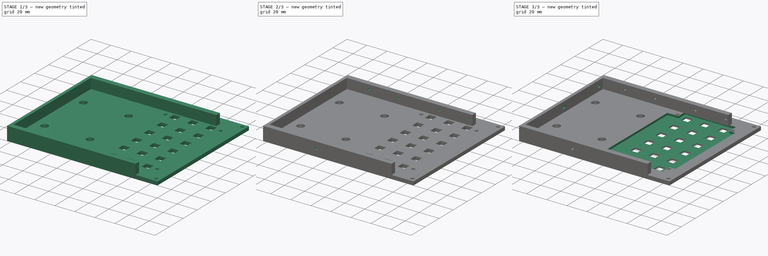
[diagram: build sequence overview — one tinted view per stage of 3, left to right]
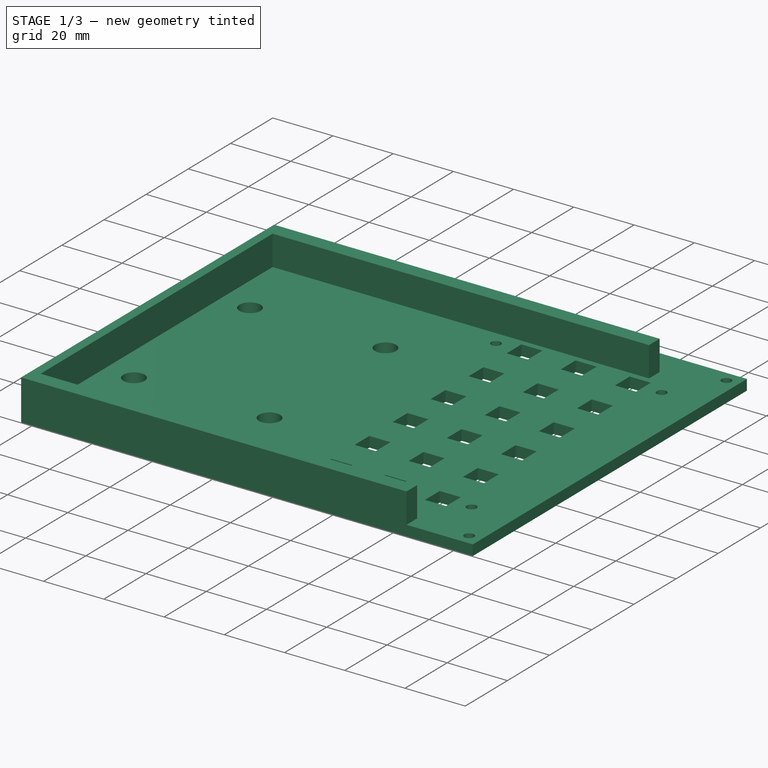
[diagram: stage 1 of 3 — iso view after this stage's code; geometry added in this stage tinted green]
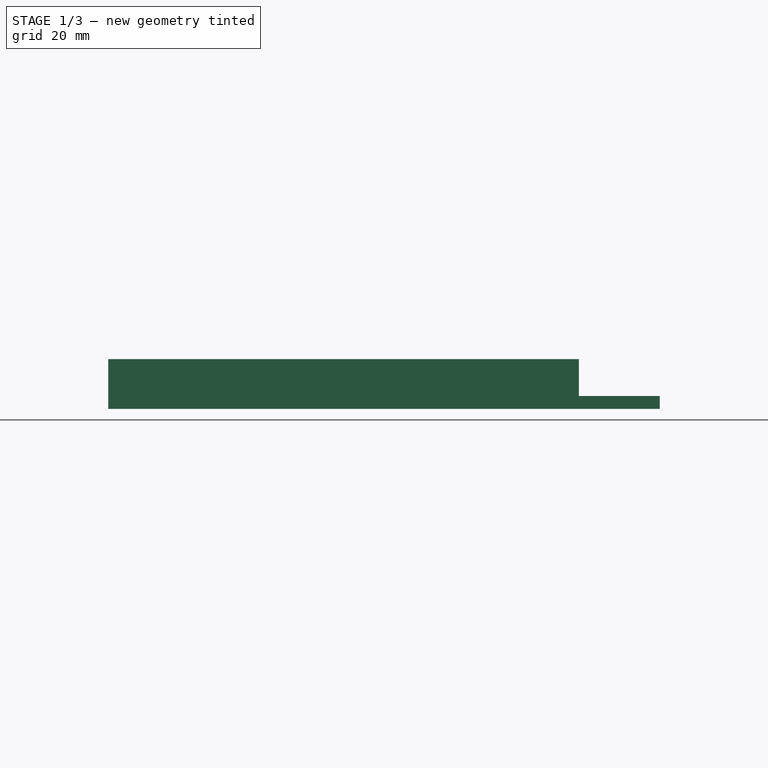
[diagram: stage 1 of 3 — front view after this stage's code; geometry added in this stage tinted green]
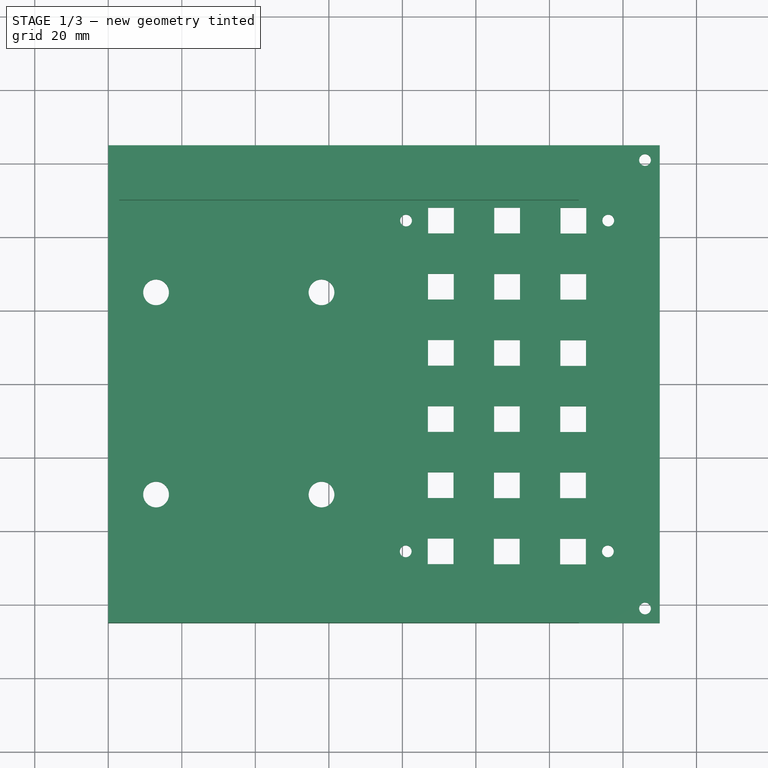
[diagram: stage 1 of 3 — top view after this stage's code; geometry added in this stage tinted green]
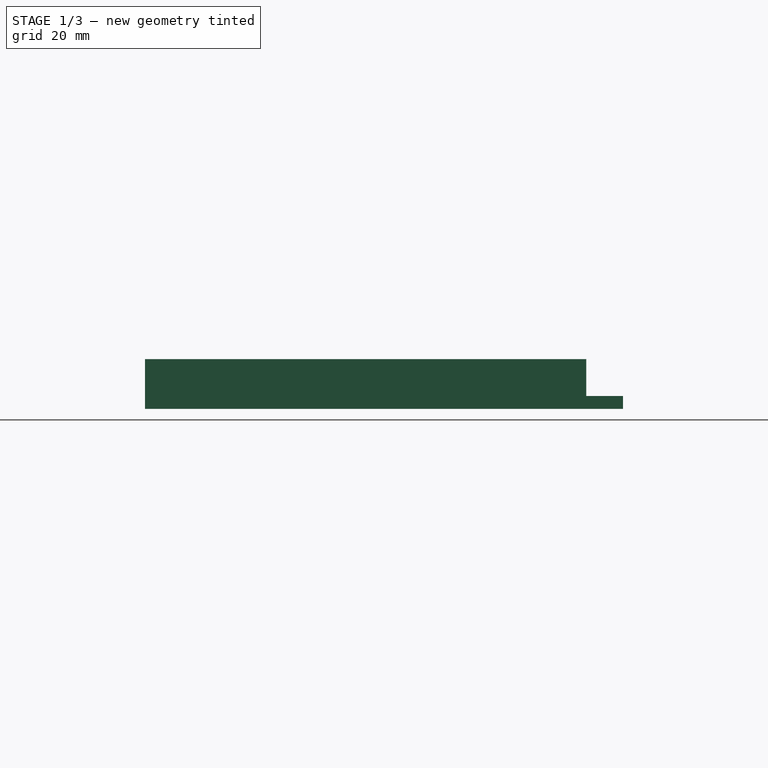
[diagram: stage 1 of 3 — right view after this stage's code; geometry added in this stage tinted green]
FCSTD DOCUMENT  (FreeCAD 0.19R24267 +99 (Git))
Label: T41 Front Right Panel V010
License: All rights reserved
LicenseURL: http://en.wikipedia.org/wiki/All_rights_reserved
objects: Sketcher::SketchObject×6, PartDesign::Pocket×4, PartDesign::Pad×2, PartDesign::Body×1
note: 19 computed .brp shape members not serialized (recipe doc carries the construction recipe); baked Part::Feature solids carry a one-line shape summary decoded from their .brp

FEATURE [Sketcher::SketchObject] Sketch013  label="Sketch"
  FullyConstrained = true
  MapMode = 5
  Support = -> [XY_Plane001]
  sketch-geometry (103):
    g0: LineSegment StartX=0 StartY=65 StartZ=0 EndX=150 EndY=65 EndZ=0
    g1: LineSegment StartX=150 StartY=65 StartZ=0 EndX=150 EndY=-65 EndZ=0
    g2: LineSegment StartX=150 StartY=-65 StartZ=0 EndX=0 EndY=-65 EndZ=0
    g3: LineSegment StartX=0 StartY=-65 StartZ=0 EndX=0 EndY=65 EndZ=0
    g4: Circle CenterX=13 CenterY=25 CenterZ=0 NormalX=0 NormalY=0 NormalZ=1 AngleXU=0 Radius=3.5
    g5: Circle CenterX=58 CenterY=25 CenterZ=0 NormalX=0 NormalY=0 NormalZ=1 AngleXU=0 Radius=3.5
    g6: Circle CenterX=13 CenterY=-30 CenterZ=0 NormalX=0 NormalY=0 NormalZ=1 AngleXU=0 Radius=3.5
    g7: Circle CenterX=58 CenterY=-30 CenterZ=0 NormalX=0 NormalY=0 NormalZ=1 AngleXU=0 Radius=3.5
    g8: LineSegment StartX=87 StartY=48.0396 StartZ=0 EndX=94 EndY=48.0396 EndZ=0
    g9: LineSegment StartX=94 StartY=48.0396 StartZ=0 EndX=94 EndY=41.0396 EndZ=0
    g10: LineSegment StartX=94 StartY=41.0396 StartZ=0 EndX=87 EndY=41.0396 EndZ=0
    g11: LineSegment StartX=87 StartY=41.0396 StartZ=0 EndX=87 EndY=48.0396 EndZ=0
    g12: LineSegment StartX=105 StartY=48.0198 StartZ=0 EndX=112 EndY=48.0198 EndZ=0
    g13: LineSegment StartX=112 StartY=48.0198 StartZ=0 EndX=112 EndY=41.0198 EndZ=0
    g14: LineSegment StartX=112 StartY=41.0198 StartZ=0 EndX=105 EndY=41.0198 EndZ=0
    g15: LineSegment StartX=105 StartY=41.0198 StartZ=0 EndX=105 EndY=48.0198 EndZ=0
    g16: LineSegment StartX=87 StartY=48.0396 StartZ=0 EndX=105 EndY=48.0198 EndZ=0
    g17: LineSegment StartX=123 StartY=48 StartZ=0 EndX=130 EndY=48 EndZ=0
    g18: LineSegment StartX=130 StartY=48 StartZ=0 EndX=130 EndY=41 EndZ=0
    g19: LineSegment StartX=130 StartY=41 StartZ=0 EndX=123 EndY=41 EndZ=0
    g20: LineSegment StartX=123 StartY=41 StartZ=0 EndX=123 EndY=48 EndZ=0
    g21: LineSegment StartX=105 StartY=48.0198 StartZ=0 EndX=123 EndY=48 EndZ=0
    g22: LineSegment StartX=86.9802 StartY=30.0396 StartZ=0 EndX=93.9802 EndY=30.0396 EndZ=0
    g23: LineSegment StartX=93.9802 StartY=30.0396 StartZ=0 EndX=93.9802 EndY=23.0396 EndZ=0
    g24: LineSegment StartX=93.9802 StartY=23.0396 StartZ=0 EndX=86.9802 EndY=23.0396 EndZ=0
    g25: LineSegment StartX=86.9802 StartY=23.0396 StartZ=0 EndX=86.9802 EndY=30.0396 EndZ=0
    g26: LineSegment StartX=87 StartY=48.0396 StartZ=0 EndX=86.9802 EndY=30.0396 EndZ=0
    g27: LineSegment StartX=104.98 StartY=30.0198 StartZ=0 EndX=111.98 EndY=30.0198 EndZ=0
    g28: LineSegment StartX=111.98 StartY=30.0198 StartZ=0 EndX=111.98 EndY=23.0198 EndZ=0
    g29: LineSegment StartX=111.98 StartY=23.0198 StartZ=0 EndX=104.98 EndY=23.0198 EndZ=0
    g30: LineSegment StartX=104.98 StartY=23.0198 StartZ=0 EndX=104.98 EndY=30.0198 EndZ=0
    g31: LineSegment StartX=86.9802 StartY=30.0396 StartZ=0 EndX=104.98 EndY=30.0198 EndZ=0
    g32: LineSegment StartX=122.98 StartY=30 StartZ=0 EndX=129.98 EndY=30 EndZ=0
    g33: LineSegment StartX=129.98 StartY=30 StartZ=0 EndX=129.98 EndY=23 EndZ=0
    g34: LineSegment StartX=129.98 StartY=23 StartZ=0 EndX=122.98 EndY=23 EndZ=0
    g35: LineSegment StartX=122.98 StartY=23 StartZ=0 EndX=122.98 EndY=30 EndZ=0
    g36: LineSegment StartX=104.98 StartY=30.0198 StartZ=0 EndX=122.98 EndY=30 EndZ=0
    g37: LineSegment StartX=86.9604 StartY=12.0396 StartZ=0 EndX=93.9604 EndY=12.0396 EndZ=0
    g38: LineSegment StartX=93.9604 StartY=12.0396 StartZ=0 EndX=93.9604 EndY=5.0396 EndZ=0
    g39: LineSegment StartX=93.9604 StartY=5.0396 StartZ=0 EndX=86.9604 EndY=5.0396 EndZ=0
    g40: LineSegment StartX=86.9604 StartY=5.0396 StartZ=0 EndX=86.9604 EndY=12.0396 EndZ=0
    g41: LineSegment StartX=86.9802 StartY=30.0396 StartZ=0 EndX=86.9604 EndY=12.0396 EndZ=0
    g42: LineSegment StartX=104.96 StartY=12.0198 StartZ=0 EndX=111.96 EndY=12.0198 EndZ=0
    g43: LineSegment StartX=111.96 StartY=12.0198 StartZ=0 EndX=111.96 EndY=5.01981 EndZ=0
    g44: LineSegment StartX=111.96 StartY=5.01981 StartZ=0 EndX=104.96 EndY=5.01981 EndZ=0
    g45: LineSegment StartX=104.96 StartY=5.01981 StartZ=0 EndX=104.96 EndY=12.0198 EndZ=0
    g46: LineSegment StartX=86.9604 StartY=12.0396 StartZ=0 EndX=104.96 EndY=12.0198 EndZ=0
    g47: LineSegment StartX=122.96 StartY=12 StartZ=0 EndX=129.96 EndY=12 EndZ=0
    g48: LineSegment StartX=129.96 StartY=12 StartZ=0 EndX=129.96 EndY=5.00002 EndZ=0
    g49: LineSegment StartX=129.96 StartY=5.00002 StartZ=0 EndX=122.96 EndY=5.00002 EndZ=0
    g50: LineSegment StartX=122.96 StartY=5.00002 StartZ=0 EndX=122.96 EndY=12 EndZ=0
    g51: LineSegment StartX=104.96 StartY=12.0198 StartZ=0 EndX=122.96 EndY=12 EndZ=0
    g52: LineSegment StartX=86.9407 StartY=-5.96039 StartZ=0 EndX=93.9407 EndY=-5.96039 EndZ=0
    g53: LineSegment StartX=93.9407 StartY=-5.96039 StartZ=0 EndX=93.9407 EndY=-12.9604 EndZ=0
    g54: LineSegment StartX=93.9407 StartY=-12.9604 StartZ=0 EndX=86.9407 EndY=-12.9604 EndZ=0
    g55: LineSegment StartX=86.9407 StartY=-12.9604 StartZ=0 EndX=86.9407 EndY=-5.96039 EndZ=0
    g56: LineSegment StartX=86.9604 StartY=12.0396 StartZ=0 EndX=86.9407 EndY=-5.96039 EndZ=0
    g57: LineSegment StartX=104.941 StartY=-5.98018 StartZ=0 EndX=111.941 EndY=-5.98018 EndZ=0
    g58: LineSegment StartX=111.941 StartY=-5.98018 StartZ=0 EndX=111.941 EndY=-12.9802 EndZ=0
    g59: LineSegment StartX=111.941 StartY=-12.9802 StartZ=0 EndX=104.941 EndY=-12.9802 EndZ=0
    g60: LineSegment StartX=104.941 StartY=-12.9802 StartZ=0 EndX=104.941 EndY=-5.98018 EndZ=0
    g61: LineSegment StartX=86.9407 StartY=-5.96039 StartZ=0 EndX=104.941 EndY=-5.98018 EndZ=0
    g62: LineSegment StartX=122.941 StartY=-5.99997 StartZ=0 EndX=129.941 EndY=-5.99997 EndZ=0
    g63: LineSegment StartX=129.941 StartY=-5.99997 StartZ=0 EndX=129.941 EndY=-13 EndZ=0
    g64: LineSegment StartX=129.941 StartY=-13 StartZ=0 EndX=122.941 EndY=-13 EndZ=0
    g65: LineSegment StartX=122.941 StartY=-13 StartZ=0 EndX=122.941 EndY=-5.99997 EndZ=0
    g66: LineSegment StartX=104.941 StartY=-5.98018 StartZ=0 EndX=122.941 EndY=-5.99997 EndZ=0
    g67: LineSegment StartX=86.9209 StartY=-23.9604 StartZ=0 EndX=93.9209 EndY=-23.9604 EndZ=0
    g68: LineSegment StartX=93.9209 StartY=-23.9604 StartZ=0 EndX=93.9209 EndY=-30.9604 EndZ=0
    g69: LineSegment StartX=93.9209 StartY=-30.9604 StartZ=0 EndX=86.9209 EndY=-30.9604 EndZ=0
    g70: LineSegment StartX=86.9209 StartY=-30.9604 StartZ=0 EndX=86.9209 EndY=-23.9604 EndZ=0
    g71: LineSegment StartX=86.9407 StartY=-5.96039 StartZ=0 EndX=86.9209 EndY=-23.9604 EndZ=0
    g72: LineSegment StartX=104.921 StartY=-23.9802 StartZ=0 EndX=111.921 EndY=-23.9802 EndZ=0
    g73: LineSegment StartX=111.921 StartY=-23.9802 StartZ=0 EndX=111.921 EndY=-30.9802 EndZ=0
    g74: LineSegment StartX=111.921 StartY=-30.9802 StartZ=0 EndX=104.921 EndY=-30.9802 EndZ=0
    g75: LineSegment StartX=104.921 StartY=-30.9802 StartZ=0 EndX=104.921 EndY=-23.9802 EndZ=0
    g76: LineSegment StartX=86.9209 StartY=-23.9604 StartZ=0 EndX=104.921 EndY=-23.9802 EndZ=0
    g77: LineSegment StartX=122.921 StartY=-24 StartZ=0 EndX=129.921 EndY=-24 EndZ=0
    g78: LineSegment StartX=129.921 StartY=-24 StartZ=0 EndX=129.921 EndY=-31 EndZ=0
    g79: LineSegment StartX=129.921 StartY=-31 StartZ=0 EndX=122.921 EndY=-31 EndZ=0
    g80: LineSegment StartX=122.921 StartY=-31 StartZ=0 EndX=122.921 EndY=-24 EndZ=0
    g81: LineSegment StartX=104.921 StartY=-23.9802 StartZ=0 EndX=122.921 EndY=-24 EndZ=0
    g82: LineSegment StartX=86.9011 StartY=-41.9604 StartZ=0 EndX=93.9011 EndY=-41.9604 EndZ=0
    g83: LineSegment StartX=93.9011 StartY=-41.9604 StartZ=0 EndX=93.9011 EndY=-48.9604 EndZ=0
    g84: LineSegment StartX=93.9011 StartY=-48.9604 StartZ=0 EndX=86.9011 EndY=-48.9604 EndZ=0
    g85: LineSegment StartX=86.9011 StartY=-48.9604 StartZ=0 EndX=86.9011 EndY=-41.9604 EndZ=0
    g86: LineSegment StartX=86.9209 StartY=-23.9604 StartZ=0 EndX=86.9011 EndY=-41.9604 EndZ=0
    g87: LineSegment StartX=104.901 StartY=-41.9802 StartZ=0 EndX=111.901 EndY=-41.9802 EndZ=0
    g88: LineSegment StartX=111.901 StartY=-41.9802 StartZ=0 EndX=111.901 EndY=-48.9802 EndZ=0
    g89: LineSegment StartX=111.901 StartY=-48.9802 StartZ=0 EndX=104.901 EndY=-48.9802 EndZ=0
    g90: LineSegment StartX=104.901 StartY=-48.9802 StartZ=0 EndX=104.901 EndY=-41.9802 EndZ=0
    g91: LineSegment StartX=86.9011 StartY=-41.9604 StartZ=0 EndX=104.901 EndY=-41.9802 EndZ=0
    g92: LineSegment StartX=122.901 StartY=-41.9999 StartZ=0 EndX=129.901 EndY=-41.9999 EndZ=0
    g93: LineSegment StartX=129.901 StartY=-41.9999 StartZ=0 EndX=129.901 EndY=-48.9999 EndZ=0
    g94: LineSegment StartX=129.901 StartY=-48.9999 StartZ=0 EndX=122.901 EndY=-48.9999 EndZ=0
    g95: LineSegment StartX=122.901 StartY=-48.9999 StartZ=0 EndX=122.901 EndY=-41.9999 EndZ=0
    g96: LineSegment StartX=104.901 StartY=-41.9802 StartZ=0 EndX=122.901 EndY=-41.9999 EndZ=0
    g97: Circle CenterX=146 CenterY=61 CenterZ=0 NormalX=0 NormalY=0 NormalZ=1 AngleXU=0 Radius=1.6
    g98: Circle CenterX=146 CenterY=-61 CenterZ=0 NormalX=0 NormalY=0 NormalZ=1 AngleXU=0 Radius=1.6
    g99: Circle CenterX=81 CenterY=44.5396 CenterZ=0 NormalX=0 NormalY=0 NormalZ=1 AngleXU=0 Radius=1.6
    g100: Circle CenterX=136 CenterY=44.5396 CenterZ=0 NormalX=0 NormalY=0 NormalZ=1 AngleXU=0 Radius=1.6
    g101: Circle CenterX=80.9011 CenterY=-45.4604 CenterZ=0 NormalX=0 NormalY=0 NormalZ=1 AngleXU=0 Radius=1.6
    g102: Circle CenterX=135.901 CenterY=-45.4604 CenterZ=0 NormalX=0 NormalY=0 NormalZ=1 AngleXU=0 Radius=1.6
  constraints (291):
    c: Coincident(g0,g1)
    c: Coincident(g1,g2)
    c: Coincident(g2,g3)
    c: Coincident(g3,g0)
    c: Horizontal(g2)
    c: Vertical(g1)
    c: DistanceX(g0,g0) = 150
    c: DistanceY(g3,g3) = 130
    c: Symmetric(g0,g2,g-1)
    c: Equal(g4,g5)
    c: Equal(g4,g6)
    c: Equal(g4,g7)
    c: Radius(g4) = 3.5  'Encoders'
    c: Coincident(g8,g9)
    c: Coincident(g9,g10)
    c: Coincident(g10,g11)
    c: Coincident(g11,g8)
    c: Horizontal(g8)
    c: Horizontal(g10)
    c: Vertical(g9)
    c: Vertical(g11)
    c: DistanceX(g8,g8) = 7
    c: DistanceY(g11,g11) = 7
    c: Coincident(g12,g13)
    c: Coincident(g13,g14)
    c: Coincident(g14,g15)
    c: Coincident(g15,g12)
    c: Horizontal(g12)
    c: Horizontal(g14)
    c: Vertical(g13)
    c: Vertical(g15)
    c: DistanceX(g12,g12) = 7
    c: DistanceY(g15,g15) = 7
    c: Coincident(g8,g16)
    c: Coincident(g12,g16)
    c: Distance(g16) = 18
    c: Angle(g16) = -0.00109927
    c: Coincident(g17,g18)
    c: Coincident(g18,g19)
    c: Coincident(g19,g20)
    c: Coincident(g20,g17)
    c: Horizontal(g17)
    c: Horizontal(g19)
    c: Vertical(g18)
    c: Vertical(g20)
    c: DistanceX(g17,g17) = 7
    c: DistanceY(g20,g20) = 7
    c: Coincident(g12,g21)
    c: Coincident(g17,g21)
    c: Equal(g16,g21)
    c: Parallel(g21,g16)
    c: Coincident(g22,g23)
    c: Coincident(g23,g24)
    c: Coincident(g24,g25)
    c: Coincident(g25,g22)
    c: Horizontal(g22)
    c: Horizontal(g24)
    c: Vertical(g23)
    c: Vertical(g25)
    c: DistanceX(g22,g22) = 7
    c: DistanceY(g25,g25) = 7
    c: Coincident(g8,g26)
    c: Coincident(g22,g26)
    c: Equal(g26,g16)
    c: Perpendicular(g26,g16)
    c: Coincident(g27,g28)
    c: Coincident(g28,g29)
    c: Coincident(g29,g30)
    c: Coincident(g30,g27)
    c: Horizontal(g27)
    c: Horizontal(g29)
    c: Vertical(g28)
    c: Vertical(g30)
    c: DistanceX(g27,g27) = 7
    c: DistanceY(g30,g30) = 7
    c: Coincident(g22,g31)
    c: Coincident(g27,g31)
    c: Equal(g16,g31)
    c: Parallel(g31,g16)
    c: Coincident(g32,g33)
    c: Coincident(g33,g34)
    c: Coincident(g34,g35)
    c: Coincident(g35,g32)
    c: Horizontal(g32)
    c: Horizontal(g34)
    c: Vertical(g33)
    c: Vertical(g35)
    c: DistanceX(g32,g32) = 7
    c: DistanceY(g35,g35) = 7
    c: Coincident(g27,g36)
    c: Coincident(g32,g36)
    c: Equal(g16,g36)
    c: Parallel(g36,g16)
    c: Coincident(g37,g38)
    c: Coincident(g38,g39)
    c: Coincident(g39,g40)
    c: Coincident(g40,g37)
    c: Horizontal(g37)
    c: Horizontal(g39)
    c: Vertical(g38)
    c: Vertical(g40)
    c: DistanceX(g37,g37) = 7
    c: DistanceY(g40,g40) = 7
    c: Coincident(g22,g41)
    c: Coincident(g37,g41)
    c: Equal(g26,g41)
    c: Perpendicular(g41,g16)
    c: Coincident(g42,g43)
    c: Coincident(g43,g44)
    c: Coincident(g44,g45)
    c: Coincident(g45,g42)
    c: Horizontal(g42)
    c: Horizontal(g44)
    c: Vertical(g43)
    c: Vertical(g45)
    c: DistanceX(g42,g42) = 7
    c: DistanceY(g45,g45) = 7
    c: Coincident(g37,g46)
    c: Coincident(g42,g46)
    c: Equal(g16,g46)
    c: Parallel(g46,g16)
    c: Coincident(g47,g48)
    c: Coincident(g48,g49)
    c: Coincident(g49,g50)
    c: Coincident(g50,g47)
    c: Horizontal(g47)
    c: Horizontal(g49)
    c: Vertical(g48)
    c: Vertical(g50)
    c: DistanceX(g47,g47) = 7
    c: DistanceY(g50,g50) = 7
    c: Coincident(g42,g51)
    c: Coincident(g47,g51)
    c: Equal(g16,g51)
    c: Parallel(g51,g16)
    c: Coincident(g52,g53)
    c: Coincident(g53,g54)
    c: Coincident(g54,g55)
    c: Coincident(g55,g52)
    c: Horizontal(g52)
    c: Horizontal(g54)
    c: Vertical(g53)
    c: Vertical(g55)
    c: DistanceX(g52,g52) = 7
    c: DistanceY(g55,g55) = 7
    c: Coincident(g37,g56)
    c: Coincident(g52,g56)
    c: Equal(g26,g56)
    c: Perpendicular(g56,g16)
    c: Coincident(g57,g58)
    c: Coincident(g58,g59)
    c: Coincident(g59,g60)
    c: Coincident(g60,g57)
    c: Horizontal(g57)
    c: Horizontal(g59)
    c: Vertical(g58)
    c: Vertical(g60)
    c: DistanceX(g57,g57) = 7
    c: DistanceY(g60,g60) = 7
    c: Coincident(g52,g61)
    c: Coincident(g57,g61)
    c: Equal(g16,g61)
    c: Parallel(g61,g16)
    c: Coincident(g62,g63)
    c: Coincident(g63,g64)
    c: Coincident(g64,g65)
    c: Coincident(g65,g62)
    c: Horizontal(g62)
    c: Horizontal(g64)
    c: Vertical(g63)
    c: Vertical(g65)
    c: DistanceX(g62,g62) = 7
    c: DistanceY(g65,g65) = 7
    c: Coincident(g57,g66)
    c: Coincident(g62,g66)
    c: Equal(g16,g66)
    c: Parallel(g66,g16)
    c: Coincident(g67,g68)
    c: Coincident(g68,g69)
    c: Coincident(g69,g70)
    c: Coincident(g70,g67)
    c: Horizontal(g67)
    c: Horizontal(g69)
    c: Vertical(g68)
    c: Vertical(g70)
    c: DistanceX(g67,g67) = 7
    c: DistanceY(g70,g70) = 7
    c: Coincident(g52,g71)
    c: Coincident(g67,g71)
    c: Equal(g26,g71)
    c: Perpendicular(g71,g16)
    c: Coincident(g72,g73)
    c: Coincident(g73,g74)
    c: Coincident(g74,g75)
    c: Coincident(g75,g72)
    c: Horizontal(g72)
    c: Horizontal(g74)
    c: Vertical(g73)
    c: Vertical(g75)
    c: DistanceX(g72,g72) = 7
    c: DistanceY(g75,g75) = 7
    c: Coincident(g67,g76)
    c: Coincident(g72,g76)
    c: Equal(g16,g76)
    c: Parallel(g76,g16)
    c: Coincident(g77,g78)
    c: Coincident(g78,g79)
    c: Coincident(g79,g80)
    c: Coincident(g80,g77)
    c: Horizontal(g77)
    c: Horizontal(g79)
    c: Vertical(g78)
    c: Vertical(g80)
    c: DistanceX(g77,g77) = 7
    c: DistanceY(g80,g80) = 7
    c: Coincident(g72,g81)
    c: Coincident(g77,g81)
    c: Equal(g16,g81)
    c: Parallel(g81,g16)
    c: Coincident(g82,g83)
    c: Coincident(g83,g84)
    c: Coincident(g84,g85)
    c: Coincident(g85,g82)
    c: Horizontal(g82)
    c: Horizontal(g84)
    c: Vertical(g83)
    c: Vertical(g85)
    c: DistanceX(g82,g82) = 7
    c: DistanceY(g85,g85) = 7
    c: Coincident(g67,g86)
    c: Coincident(g82,g86)
    c: Equal(g26,g86)
    c: Perpendicular(g86,g16)
    c: Coincident(g87,g88)
    c: Coincident(g88,g89)
    c: Coincident(g89,g90)
    c: Coincident(g90,g87)
    c: Horizontal(g87)
    c: Horizontal(g89)
    c: Vertical(g88)
    c: Vertical(g90)
    c: DistanceX(g87,g87) = 7
    c: DistanceY(g90,g90) = 7
    c: Coincident(g82,g91)
    c: Coincident(g87,g91)
    c: Equal(g16,g91)
    c: Parallel(g91,g16)
    c: Coincident(g92,g93)
    c: Coincident(g93,g94)
    c: Coincident(g94,g95)
    c: Coincident(g95,g92)
    c: Horizontal(g92)
    c: Horizontal(g94)
    c: Vertical(g93)
    c: Vertical(g95)
    c: DistanceX(g92,g92) = 7
    c: DistanceY(g95,g95) = 7
    c: Coincident(g87,g96)
    c: Coincident(g92,g96)
    c: Equal(g16,g96)
    c: Parallel(g96,g16)
    c: DistanceY(g17,g0) = 17
    c: DistanceX(g17,g0) = 20
    c: DistanceX(g6,g7) = 45
    c: Horizontal(g6,g7)
    c: Vertical(g6,g4)
    c: Vertical(g7,g5)
    c: DistanceY(g6,g4) = 55
    c: DistanceY(g7,g5) = 55
    c: DistanceY(g1,g7) = 35
    c: DistanceX(g7,g1) = 92
    c: Radius(g97) = 1.6
    c: DistanceX(g97,g0) = 4
    c: DistanceY(g97,g0) = 4
    c: Radius(g98) = 1.6
    c: DistanceX(g98,g1) = 4
    c: DistanceY(g1,g98) = 4
    c: Radius(g99) = 1.6
    c: DistanceX(g99,g8) = 6
    c: Radius(g100) = 1.6
    c: DistanceX(g17,g100) = 6
    c: Radius(g101) = 1.6
    c: DistanceX(g101,g84) = 6
    c: Radius(g102) = 1.6
    c: DistanceX(g93,g102) = 6
    c: DistanceX(g0,g-1) = 0
    c: Equal(g0,g2)
    c: DistanceY(g101,g84) = -3.5
    c: Horizontal(g101,g102)
    c: DistanceY(g99,g8) = 3.5
    c: Horizontal(g99,g100)
FEATURE [PartDesign::Pad] Pad004  label="Front"
  Direction = (1,1,1)
  Length = 3.5
  Length2 = 100
  Profile = -> Sketch013
  Type = 0
FEATURE [Sketcher::SketchObject] Sketch001
  AttachmentOffset = pos=(0,0,3.5) rot=(0,0,1;0rad)
  FullyConstrained = true
  MapMode = 5
  Placement = pos=(0,0,3.5) rot=(0,0,1;0rad)
  Support = -> [XY_Plane001]
  sketch-geometry (10):
    g0: LineSegment StartX=0 StartY=55 StartZ=0 EndX=3 EndY=55 EndZ=0
    g1: LineSegment StartX=3 StartY=50 StartZ=0 EndX=3 EndY=-60 EndZ=0
    g2: LineSegment StartX=3 StartY=-65 StartZ=0 EndX=0 EndY=-65 EndZ=0
    g3: LineSegment StartX=0 StartY=-65 StartZ=0 EndX=0 EndY=55 EndZ=0
    g4: LineSegment StartX=3 StartY=55 StartZ=0 EndX=128 EndY=55 EndZ=0
    g5: LineSegment StartX=128 StartY=55 StartZ=0 EndX=128 EndY=50 EndZ=0
    g6: LineSegment StartX=128 StartY=50 StartZ=0 EndX=3 EndY=50 EndZ=0
    g7: LineSegment StartX=3 StartY=-65 StartZ=0 EndX=128 EndY=-65 EndZ=0
    g8: LineSegment StartX=128 StartY=-65 StartZ=0 EndX=128 EndY=-60 EndZ=0
    g9: LineSegment StartX=128 StartY=-60 StartZ=0 EndX=3 EndY=-60 EndZ=0
  constraints (32):
    c: Coincident(g2,g3)
    c: Coincident(g3,g0)
    c: Horizontal(g0)
    c: Horizontal(g2)
    c: Vertical(g1)
    c: Vertical(g3)
    c: PointOnObject(g0,g-2)
    c: DistanceY(g2,g0) = 120
    c: DistanceX(g2,g2) = 3
    c: DistanceY(g-1,g0) = 55
    c: Coincident(g4,g5)
    c: Coincident(g5,g6)
    c: Horizontal(g4)
    c: Horizontal(g6)
    c: Vertical(g5)
    c: Coincident(g4,g0)
    c: DistanceY(g5,g5) = 5
    c: DistanceX(g6,g6) = 125
    c: Coincident(g7,g8)
    c: Coincident(g8,g9)
    c: Horizontal(g7)
    c: Horizontal(g9)
    c: Vertical(g8)
    c: Coincident(g7,g2)
    c: DistanceY(g8,g8) = 5
    c: DistanceX(g9,g9) = 125
    c: PointOnObject(g1,g6)
    c: PointOnObject(g1,g9)
    c: DistanceX(g4,g4) = 125
    c: DistanceX(g7,g7) = 125
    c: DistanceX(g0,g0) = 3
    c: DistanceX(g2,g1) = 3
FEATURE [Sketcher::SketchObject] Sketch014  label="Sketch002"
  FullyConstrained = true
  MapMode = 5
  Placement = pos=(0,0,0) rot=(0.57735,0.57735,0.57735;2.0944rad)
  Support = -> [YZ_Plane001]
  sketch-geometry (3):
    g0: Circle CenterX=45 CenterY=8 CenterZ=0 NormalX=0 NormalY=0 NormalZ=1 AngleXU=0 Radius=1.75
    g1: Circle CenterX=-5 CenterY=8 CenterZ=0 NormalX=0 NormalY=0 NormalZ=1 AngleXU=0 Radius=1.75
    g2: Circle CenterX=-55 CenterY=8 CenterZ=0 NormalX=0 NormalY=0 NormalZ=1 AngleXU=0 Radius=1.75
  constraints (9):
    c: Equal(g0,g1)
    c: Diameter(g0) = 3.5
    c: DistanceX(g2,g-1) = 55
    c: DistanceX(g-1,g0) = 45
    c: DistanceY(g-1,g0) = 8
    c: DistanceY(g-1,g1) = 8
    c: DistanceY(g-1,g2) = 8
    c: Diameter(g2) = 3.5
    c: DistanceX(g1,g-1) = 5
FEATURE [Sketcher::SketchObject] Sketch015  label="Sketch003"
  AttachmentOffset = pos=(0,0,65) rot=(0,0,1;0rad)
  FullyConstrained = true
  MapMode = 5
  Placement = pos=(0,-65,-1.44e-14) rot=(1,0,0;1.5708rad)
  Support = -> [XZ_Plane001]
  sketch-geometry (1):
    g0: Circle CenterX=53 CenterY=7 CenterZ=0 NormalX=0 NormalY=0 NormalZ=1 AngleXU=0 Radius=1.15
  constraints (3):
    c: DistanceX(g-1,g0) = 53
    c: DistanceY(g-1,g0) = 7
    c: Diameter(g0) = 2.3
FEATURE [Sketcher::SketchObject] Sketch004
  AttachmentOffset = pos=(0,0,-55) rot=(0,0,1;0rad)
  FullyConstrained = true
  MapMode = 5
  Placement = pos=(0,55,1.22e-14) rot=(1,0,0;1.5708rad)
  Support = -> [XZ_Plane001]
  sketch-geometry (4):
    g0: Circle CenterX=25 CenterY=9 CenterZ=0 NormalX=0 NormalY=0 NormalZ=1 AngleXU=0 Radius=1
    g1: Circle CenterX=95 CenterY=9 CenterZ=0 NormalX=0 NormalY=0 NormalZ=1 AngleXU=0 Radius=1
    g2: Circle CenterX=55 CenterY=9 CenterZ=0 NormalX=0 NormalY=0 NormalZ=1 AngleXU=0 Radius=1
    g3: Circle CenterX=125 CenterY=9 CenterZ=0 NormalX=0 NormalY=0 NormalZ=1 AngleXU=0 Radius=1
  constraints (12):
    c: DistanceX(g-1,g0) = 25
    c: DistanceY(g-1,g0) = 9
    c: Horizontal(g0,g1)
    c: Equal(g1,g0)
    c: Diameter(g1) = 2
    c: DistanceX(g-1,g1) = 95
    c: DistanceX(g-1,g2) = 55
    c: DistanceX(g-1,g3) = 125
    c: DistanceY(g-1,g2) = 9
    c: DistanceY(g-1,g3) = 9
    c: Equal(g2,g3)
    c: Diameter(g2) = 2
FEATURE [Sketcher::SketchObject] Sketch  label="Sketch005"
  AttachmentOffset = pos=(0,0,3.5) rot=(0,0,1;0rad)
  FullyConstrained = true
  MapMode = 5
  Placement = pos=(0,0,3.5) rot=(0,0,1;0rad)
  Support = -> [XY_Plane001]
  sketch-geometry (12):
    g0: LineSegment StartX=83.55 StartY=52 StartZ=0 EndX=134.15 EndY=52 EndZ=0
    g1: LineSegment StartX=140 StartY=42.5 StartZ=0 EndX=140 EndY=-42.5 EndZ=0
    g2: LineSegment StartX=134.15 StartY=-53 StartZ=0 EndX=83.55 EndY=-53 EndZ=0
    g3: LineSegment StartX=72.55 StartY=-42.5 StartZ=0 EndX=72.55 EndY=42.5 EndZ=0
    g4: LineSegment StartX=83.55 StartY=-42.5 StartZ=0 EndX=83.55 EndY=-53 EndZ=0
    g5: LineSegment StartX=83.55 StartY=-42.5 StartZ=0 EndX=72.55 EndY=-42.5 EndZ=0
    g6: LineSegment StartX=134.15 StartY=-42.5 StartZ=0 EndX=134.15 EndY=-53 EndZ=0
    g7: LineSegment StartX=134.15 StartY=-42.5 StartZ=0 EndX=140 EndY=-42.5 EndZ=0
    g8: LineSegment StartX=83.55 StartY=42.5 StartZ=0 EndX=72.55 EndY=42.5 EndZ=0
    g9: LineSegment StartX=83.55 StartY=42.5 StartZ=0 EndX=83.55 EndY=52 EndZ=0
    g10: LineSegment StartX=134.15 StartY=42.5 StartZ=0 EndX=134.15 EndY=52 EndZ=0
    g11: LineSegment StartX=134.15 StartY=42.5 StartZ=0 EndX=140 EndY=42.5 EndZ=0
  constraints (36):
    c: Horizontal(g0)
    c: Horizontal(g2)
    c: Vertical(g1)
    c: Vertical(g3)
    c: Vertical(g4)
    c: Horizontal(g5)
    c: Horizontal(g7)
    c: Vertical(g9)
    c: Vertical(g10)
    c: Horizontal(g11)
    c: Coincident(g0,g9)
    c: Coincident(g3,g8)
    c: Coincident(g0,g10)
    c: Coincident(g1,g11)
    c: Coincident(g3,g5)
    c: Coincident(g2,g4)
    c: Coincident(g1,g7)
    c: Coincident(g2,g6)
    c: DistanceX(g-1,g1) = 140
    c: DistanceY(g-1,g0) = 52
    c: DistanceY(g2,g-1) = 53
    c: Perpendicular(g8,g3)
    c: Horizontal(g4,g6)
    c: DistanceY(g-1,g3) = 42.5
    c: Coincident(g9,g8)
    c: DistanceX(g8,g10) = 50.6
    c: Coincident(g10,g11)
    c: Horizontal(g8,g10)
    c: DistanceY(g3,g-1) = 42.5
    c: DistanceX(g8,g8) = 11
    c: Vertical(g8,g5)
    c: Coincident(g4,g5)
    c: DistanceX(g2,g2) = 50.6
    c: Coincident(g7,g6)
    c: Perpendicular(g2,g6)
    c: DistanceX(g-1,g3) = 72.55
FEATURE [PartDesign::Pad] Pad  label="Flange"
  BaseFeature = -> Pad004
  Direction = (1,1,1)
  Length = 10
  Length2 = 100
  Profile = -> Sketch001
  Type = 0
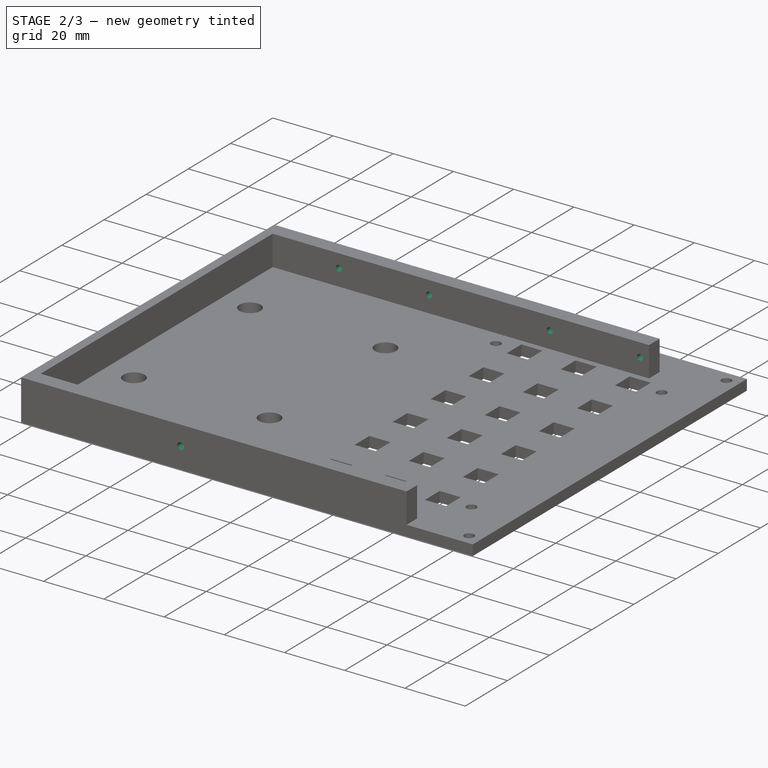
[diagram: stage 2 of 3 — iso view after this stage's code; geometry added in this stage tinted green]
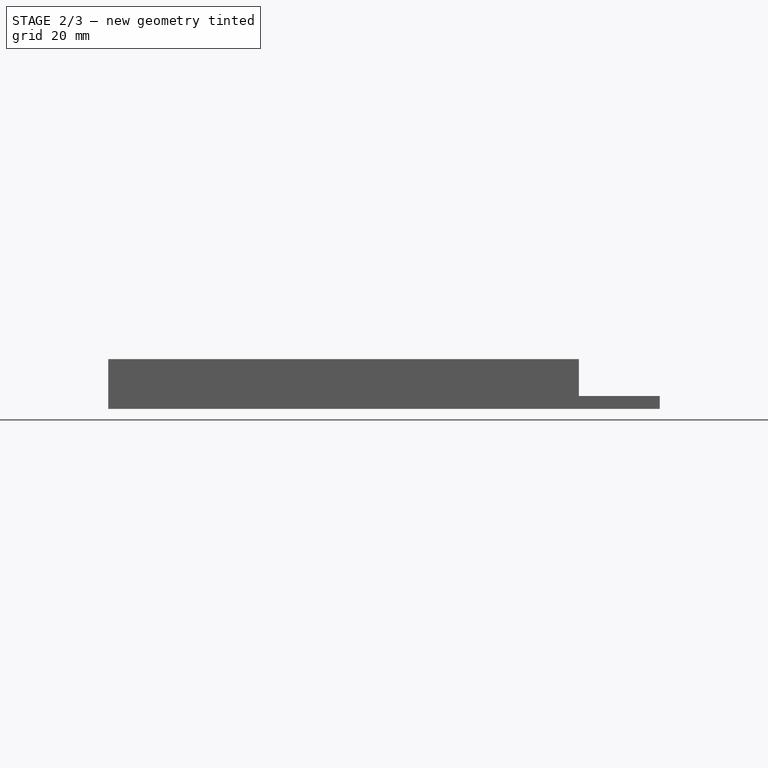
[diagram: stage 2 of 3 — front view after this stage's code; geometry added in this stage tinted green]
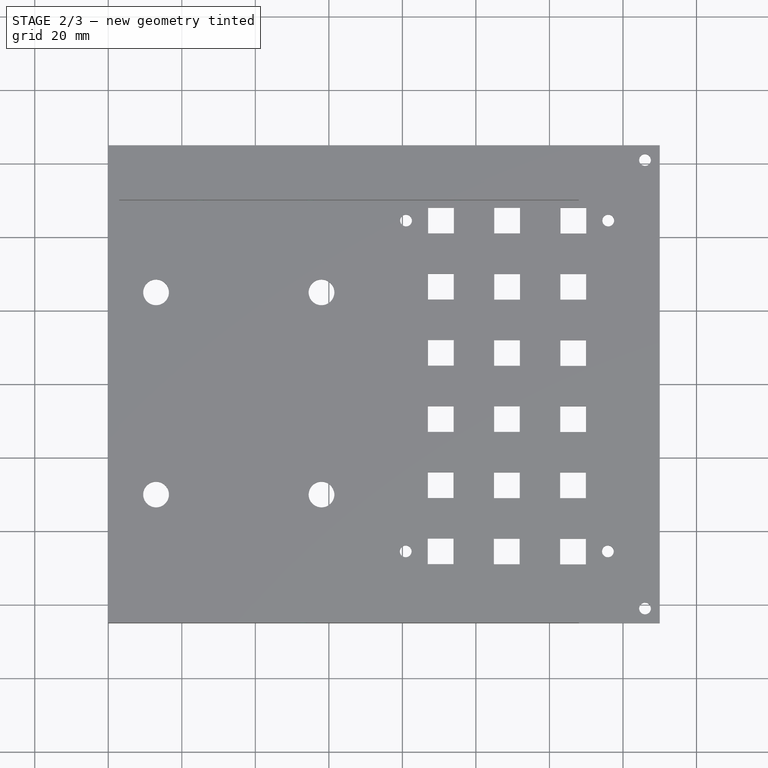
[diagram: stage 2 of 3 — top view after this stage's code; geometry added in this stage tinted green]
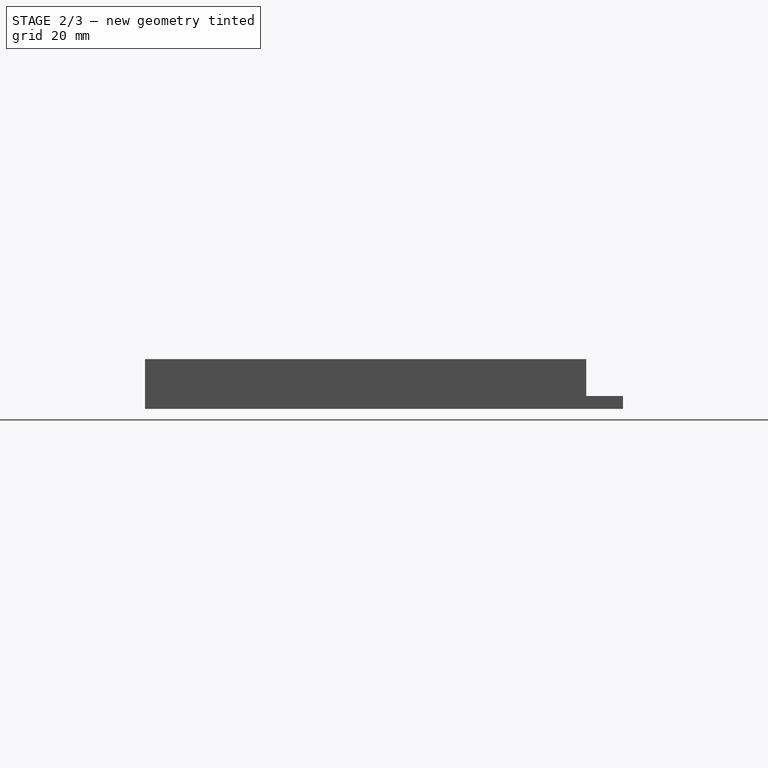
[diagram: stage 2 of 3 — right view after this stage's code; geometry added in this stage tinted green]
FEATURE [PartDesign::Pocket] Pocket005  label="2mm top Mtg Hole"
  BaseFeature = -> Pad
  Length = 5
  Length2 = 100
  Profile = -> Sketch015
  Type = 0
FEATURE [PartDesign::Pocket] Pocket006  label="Base Mtg Holes001"
  BaseFeature = -> Pocket005
  Length = 10
  Length2 = 100
  Midplane = true
  Profile = -> Sketch004
  Type = 0
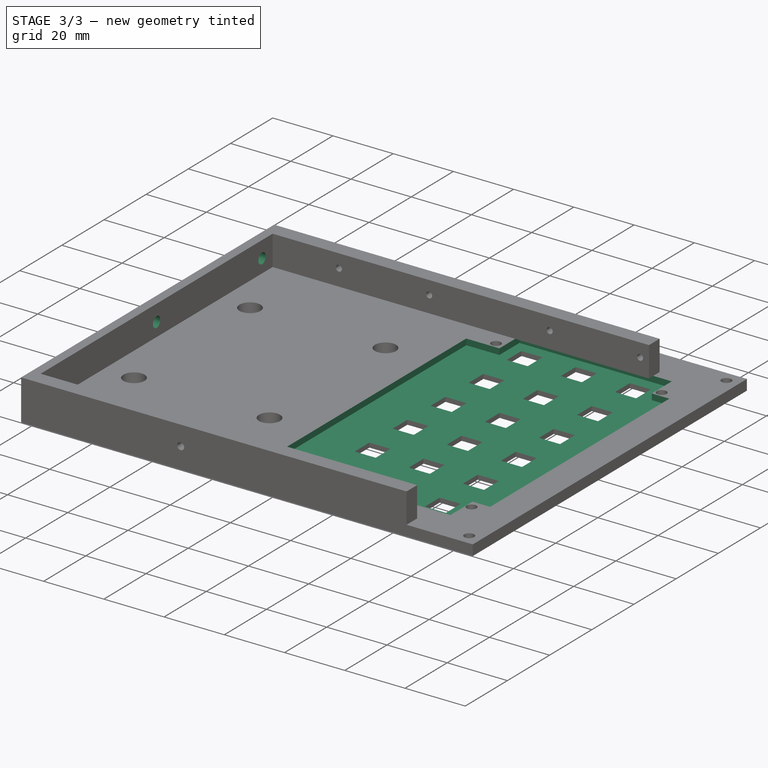
[diagram: stage 3 of 3 — iso view after this stage's code; geometry added in this stage tinted green]
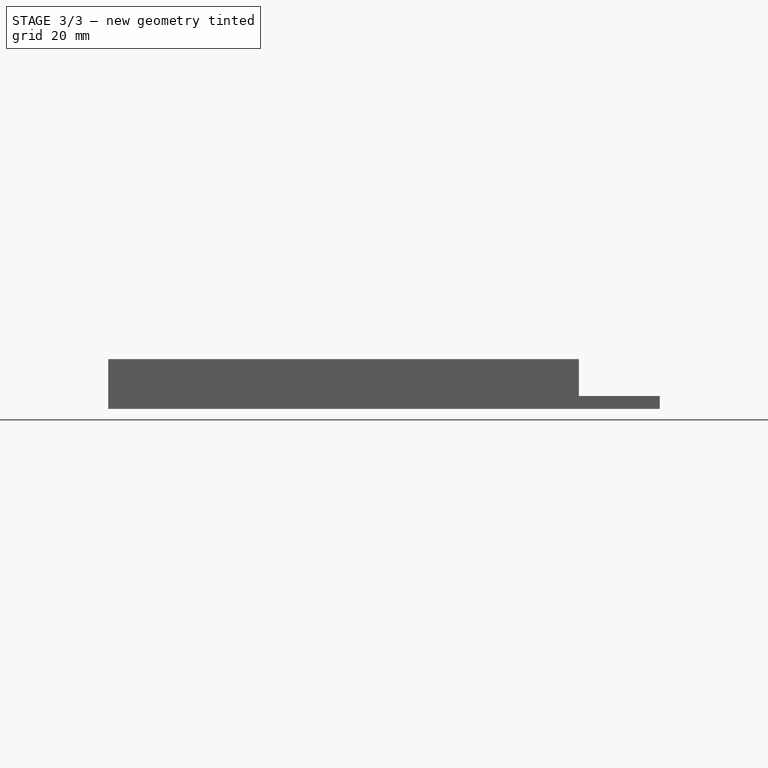
[diagram: stage 3 of 3 — front view after this stage's code; geometry added in this stage tinted green]
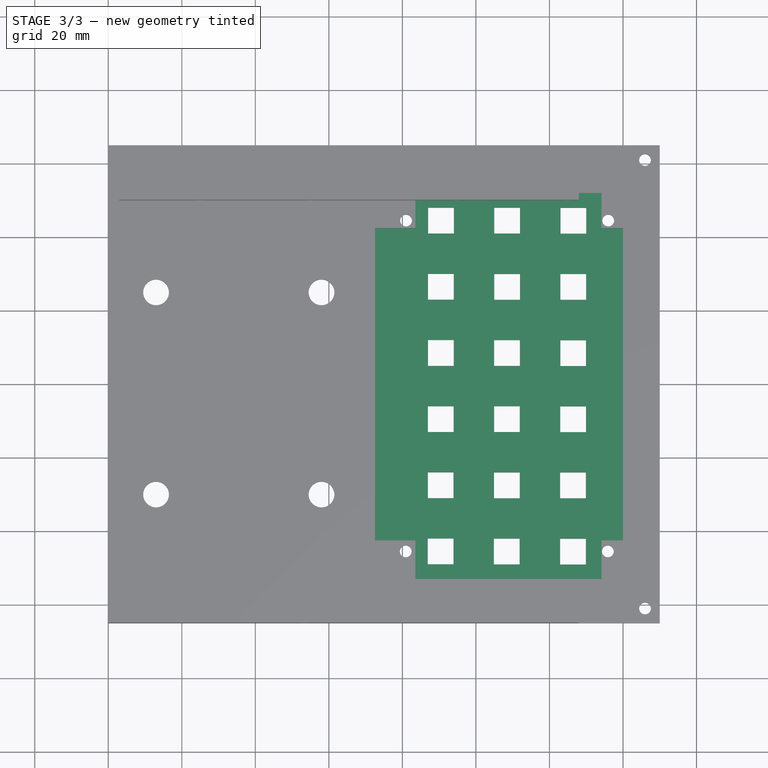
[diagram: stage 3 of 3 — top view after this stage's code; geometry added in this stage tinted green]
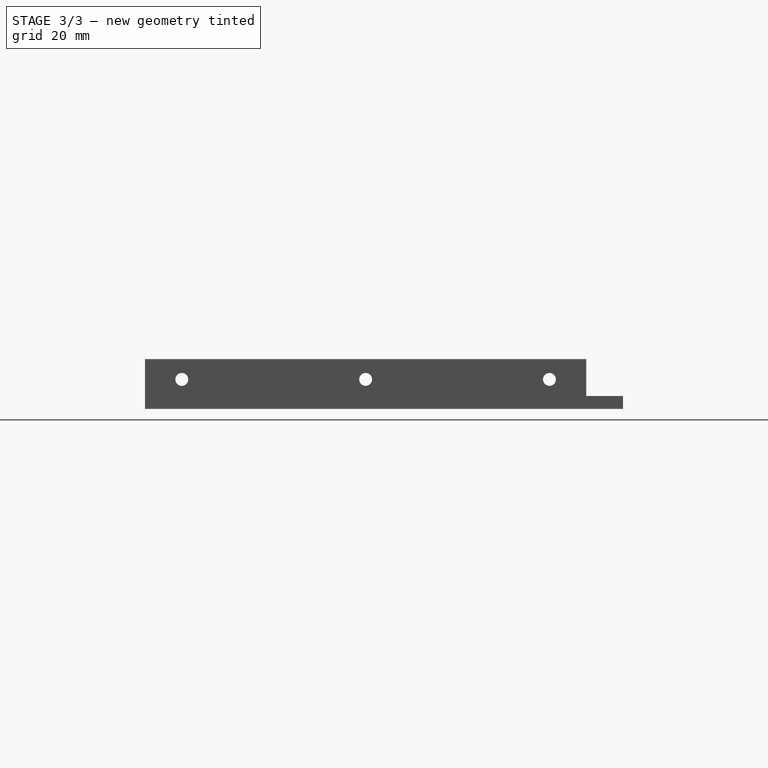
[diagram: stage 3 of 3 — right view after this stage's code; geometry added in this stage tinted green]
FEATURE [PartDesign::Pocket] Pocket007  label="Center Holes"
  BaseFeature = -> Pocket006
  Length = 5
  Length2 = 100
  Profile = -> Sketch014
  Reversed = true
  Type = 0
FEATURE [PartDesign::Pocket] Pocket  label="Sw Pocket"
  BaseFeature = -> Pocket007
  Length = 2
  Length2 = 100
  Profile = -> Sketch
  Type = 0
FEATURE [PartDesign::Body] Body001  label="Front PanelRl"
  Group = -> [Sketch013,Pad004,Sketch001,Sketch014,Sketch015,Sketch004,Pad,Pocket005,Pocket006,Pocket007,Sketch,Pocket]
  Origin = -> Origin001
  Tip = -> Pocket
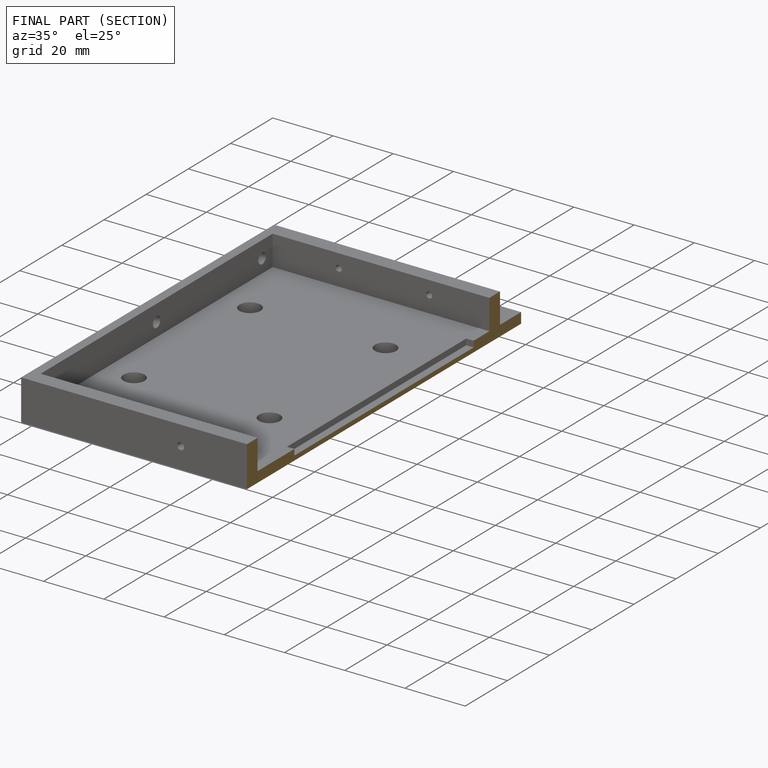
[diagram: finished part — half-section view (interior)]
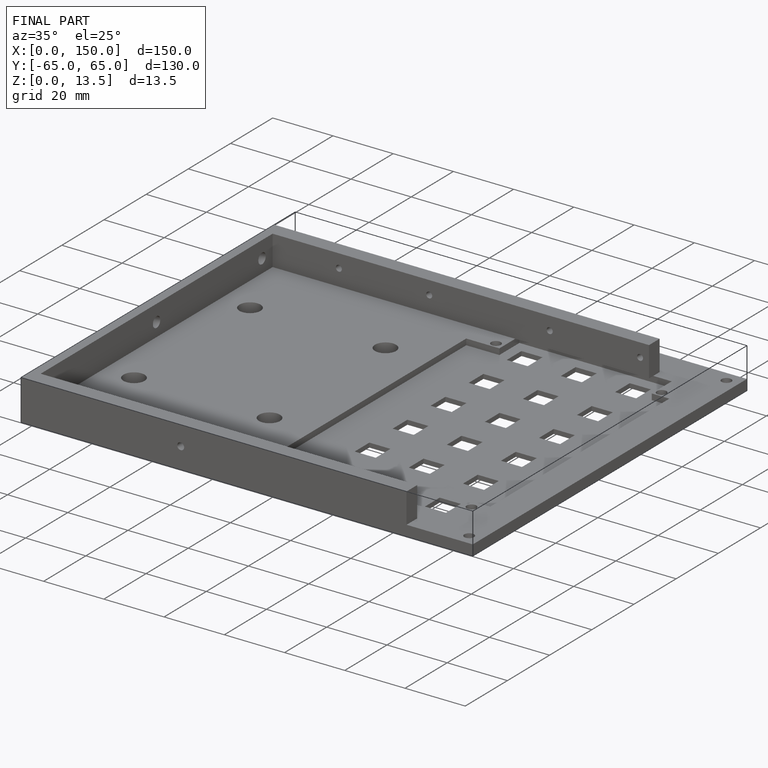
[diagram: finished part — iso view with bounding-box wireframe]
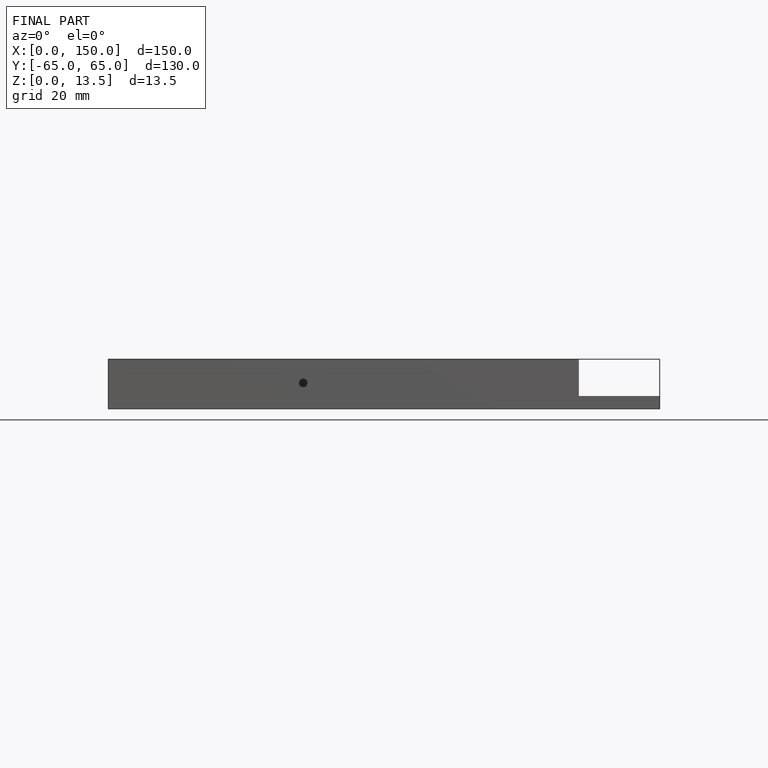
[diagram: finished part — front view with bounding-box wireframe]
